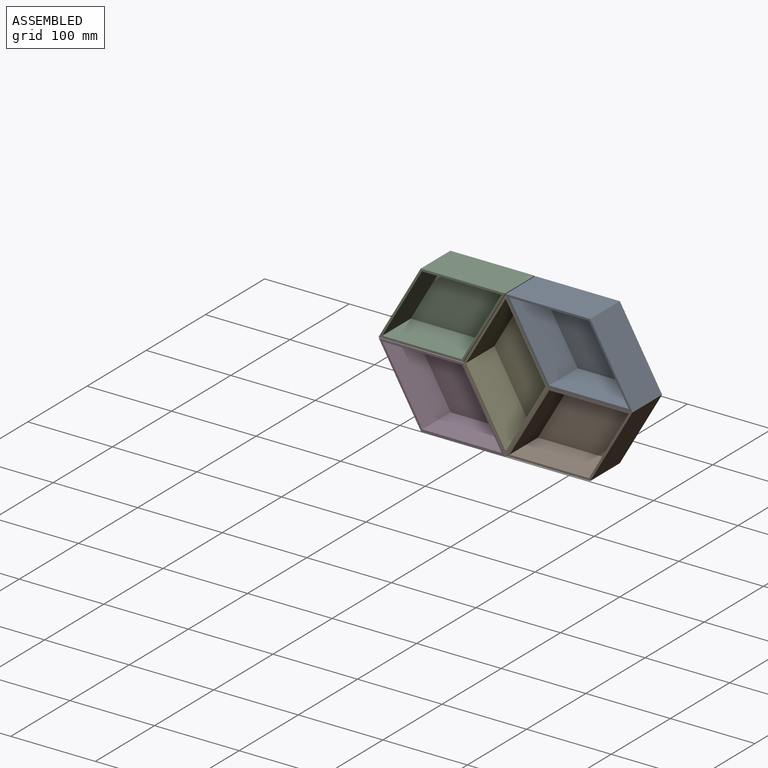
[diagram: assembled view]
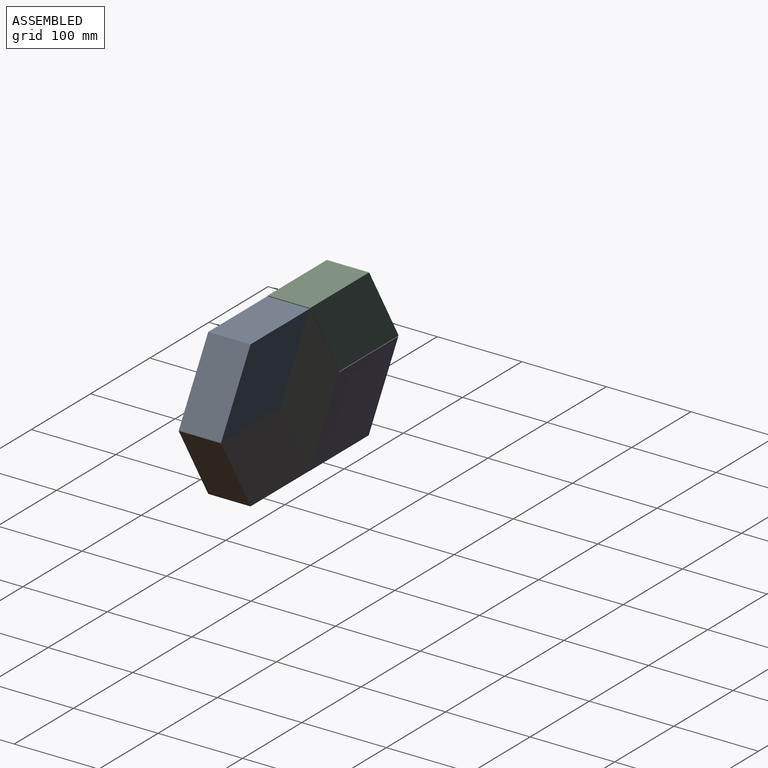
[diagram: assembled view, second angle]
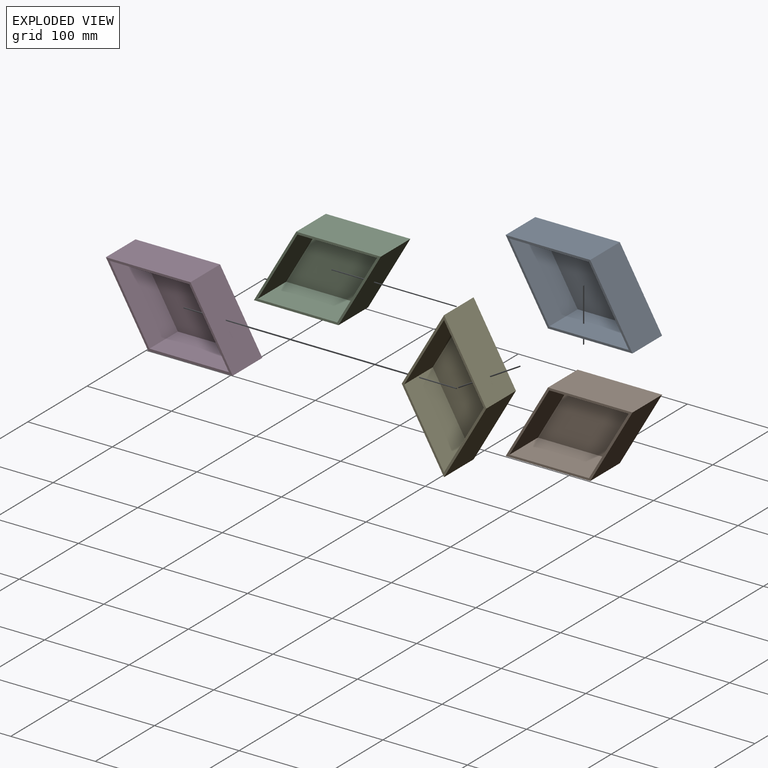
[diagram: exploded view]
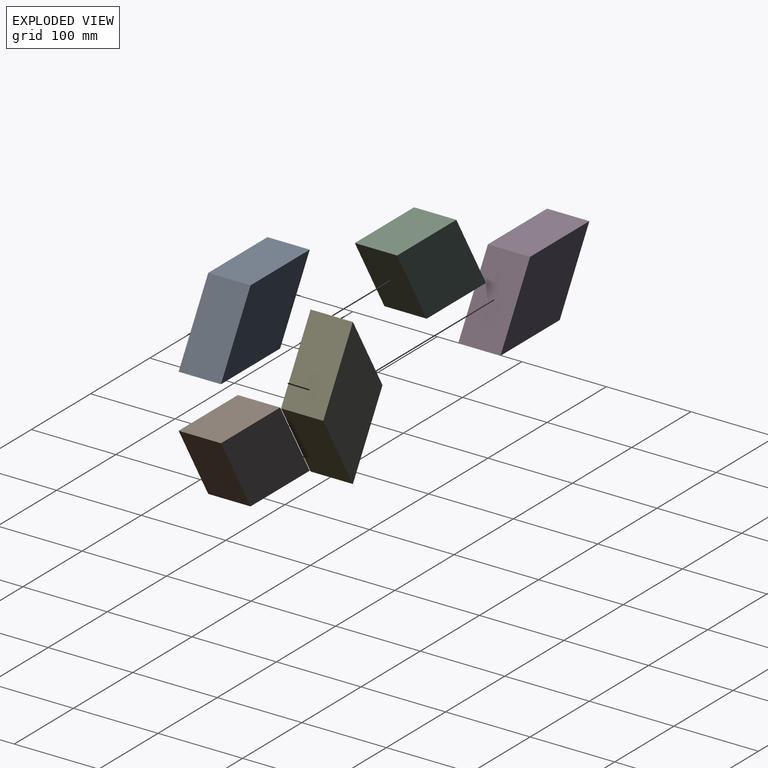
[diagram: exploded view, second angle]
ASSEMBLY  parts=5 mates=2
PART A: 11 faces, bbox 100x50x173.2 mm
  f0: plane 173.21x100mm, normal (0,-1,0), area 1008.1mm2, adj f1,f2,f3,f4,f6,f7,f8,f9
  f1: plane 86.6x50mm, normal (-0.87,0,0.5), area 5000mm2, adj f0,f2,f4,f5
  f2: plane 86.6x50mm, normal (-0.87,0,-0.5), area 5000mm2, adj f0,f1,f3,f5
  f3: plane 86.6x50mm, normal (0.87,0,-0.5), area 5000mm2, adj f0,f2,f4,f5
  f4: plane 86.6x50mm, normal (0.87,0,0.5), area 5000mm2, adj f0,f1,f3,f5
  f5: plane 173.21x100mm, normal (0,1,0), area 8660.3mm2, adj f1,f2,f3,f4
  f6: plane 81.41x48mm, normal (-0.87,0,-0.5), area 4512mm2, adj f0,f7,f9,f10
  f7: plane 81.41x48mm, normal (0.87,0,-0.5), area 4512mm2, adj f0,f6,f8,f10
  f8: plane 81.41x48mm, normal (0.87,0,0.5), area 4512mm2, adj f0,f7,f9,f10
  f9: plane 81.41x48mm, normal (-0.87,0,0.5), area 4512mm2, adj f0,f6,f8,f10
  f10: plane 162.81x94mm, normal (0,-1,0), area 7652.2mm2, adj f6,f7,f8,f9
PART B: same geometry as A
PART C: same geometry as A
PART D: same geometry as A
PART E: same geometry as A
PLACE A rot(axis=(0,-1,0),60deg) t=(36.51,-37.54,57.82)mm
PLACE B rot(axis=(0,1,0),60deg) t=(36.51,-37.54,-28.78)mm
PLACE C rot(axis=(0,1,0),60deg) t=(-113.88,-37.6,58.18)mm
PLACE D rot(axis=(0,-1,0),60deg) t=(-113.42,-37.79,-29.21)mm
PLACE E t=(-38.49,-37.54,14.52)mm
MATE fastened B.f1 <-> A.f2  axis (0,0,1) through (61.51,-12.54,14.52)mm
MATE fastened A.f1 <-> E.f4  axis (-0.87,0,-0.5) through (-13.49,-12.54,57.82)mm
